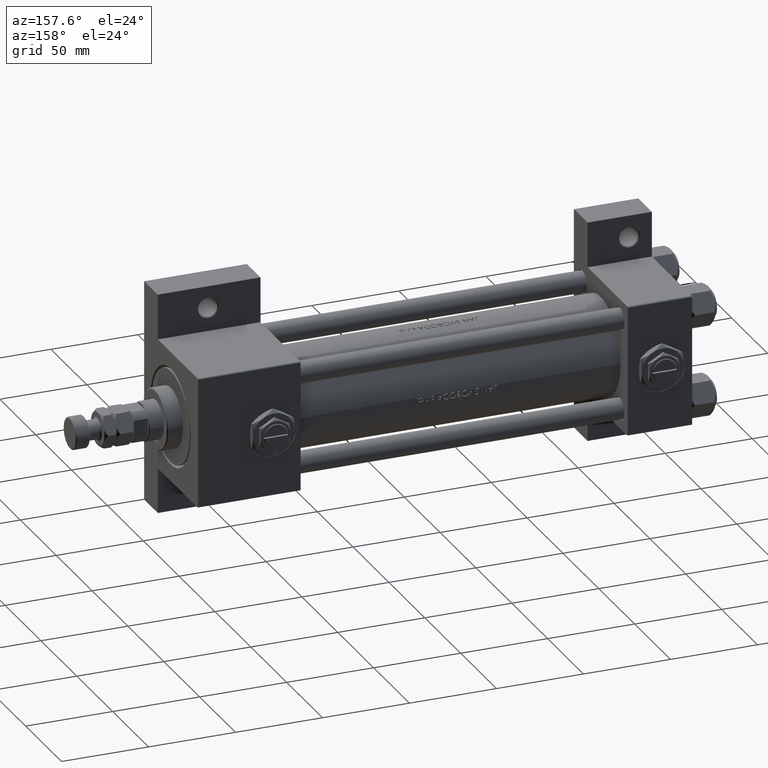
[diagram: clean part render]
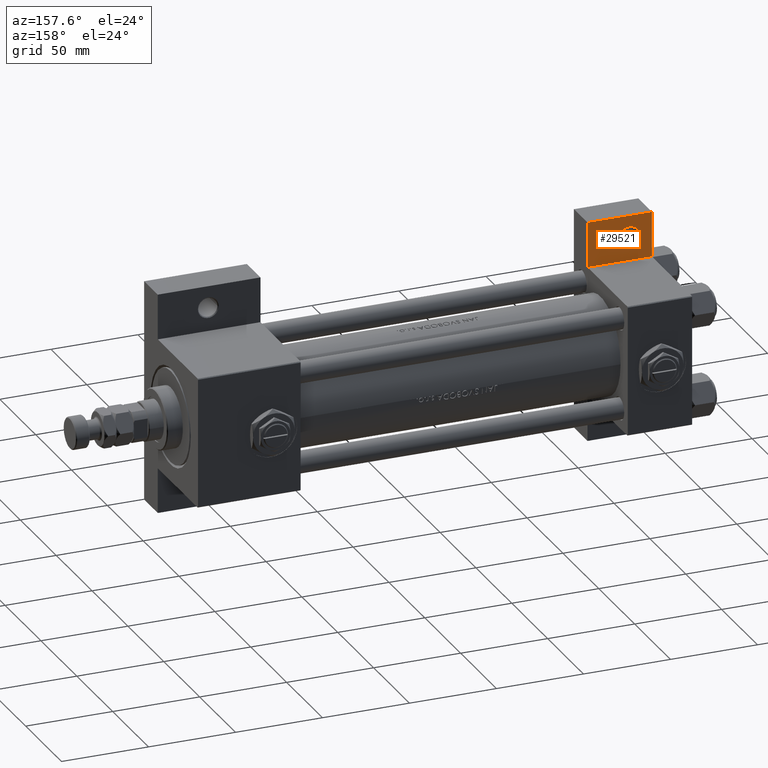
[diagram: same view with one face highlighted and labeled with its STEP entity id]
A machine part, auxiliary view. The second image highlights one B-rep face of the part: STEP entity #29521.
In plain terms, the highlighted planar face has unit normal (0, -1, 0).
Its self-contained STEP definition (entity closure, byte-faithful):
#188 = CARTESIAN_POINT ( 'NONE',  ( -7.145701223179000102E-16, -37.50000000000001421, -18.49999999999999645 ) ) ;
#1687 = ORIENTED_EDGE ( 'NONE', *, *, #18633, .T. ) ;
#1734 = VECTOR ( 'NONE', #19740, 1000.000000000000000 ) ;
#3607 = AXIS2_PLACEMENT_3D ( 'NONE', #4574, #20181, #36071 ) ;
#4158 = ORIENTED_EDGE ( 'NONE', *, *, #40311, .T. ) ;
#4574 = CARTESIAN_POINT ( 'NONE',  ( 12.99999999999999822, -51.00000000000002842, -18.50000000000000000 ) ) ;
#4653 = LINE ( 'NONE', #23599, #1734 ) ;
#5338 = FACE_OUTER_BOUND ( 'NONE', #29093, .T. ) ;
#6529 = VERTEX_POINT ( 'NONE', #21833 ) ;
#7335 = CARTESIAN_POINT ( 'NONE',  ( 37.00000000000000000, -63.49999999999998579, -18.50000000000000355 ) ) ;
#7936 = CARTESIAN_POINT ( 'NONE',  ( -7.145701223179004046E-16, -37.50000000000000711, -18.50000000000000355 ) ) ;
#8640 = DIRECTION ( 'NONE',  ( -1.000000000000000000, 0.000000000000000000, 0.000000000000000000 ) ) ;
#9877 = ORIENTED_EDGE ( 'NONE', *, *, #33243, .T. ) ;
#12215 = AXIS2_PLACEMENT_3D ( 'NONE', #47536, #35489, #12420 ) ;
#12420 = DIRECTION ( 'NONE',  ( -1.000000000000000000, 0.000000000000000000, 0.000000000000000000 ) ) ;
#13226 = VERTEX_POINT ( 'NONE', #40373 ) ;
#14512 = LINE ( 'NONE', #7335, #42526 ) ;
#16682 = DIRECTION ( 'NONE',  ( 4.278042683914906889E-17, -1.000000000000000000, 0.000000000000000000 ) ) ;
#17112 = CIRCLE ( 'NONE', #12215, 5.999499999999966526 ) ;
#17268 = EDGE_LOOP ( 'NONE', ( #9877, #1687 ) ) ;
#17606 = PLANE ( 'NONE',  #26374 ) ;
#18407 = VERTEX_POINT ( 'NONE', #7936 ) ;
#18529 = ORIENTED_EDGE ( 'NONE', *, *, #21001, .T. ) ;
#18633 = EDGE_CURVE ( 'NONE', #43049, #6529, #17112, .T. ) ;
#19740 = DIRECTION ( 'NONE',  ( 1.000000000000000000, 0.000000000000000000, 0.000000000000000000 ) ) ;
#20181 = DIRECTION ( 'NONE',  ( 0.000000000000000000, 0.000000000000000000, -1.000000000000000000 ) ) ;
#20952 = DIRECTION ( 'NONE',  ( 0.000000000000000000, 0.000000000000000000, -1.000000000000000000 ) ) ;
#21001 = EDGE_CURVE ( 'NONE', #35313, #18407, #39371, .T. ) ;
#21833 = CARTESIAN_POINT ( 'NONE',  ( 18.99949999999996564, -51.00000000000002842, -18.50000000000000000 ) ) ;
#22920 = VECTOR ( 'NONE', #8640, 1000.000000000000000 ) ;
#23599 = CARTESIAN_POINT ( 'NONE',  ( 3.977209754999747208E-16, -63.50000000000000000, -18.50000000000000355 ) ) ;
#23722 = ORIENTED_EDGE ( 'NONE', *, *, #48873, .T. ) ;
#24255 = CARTESIAN_POINT ( 'NONE',  ( 3.977209754999747208E-16, -63.50000000000000000, -18.50000000000000355 ) ) ;
#25292 = CARTESIAN_POINT ( 'NONE',  ( 0.000000000000000000, 0.000000000000000000, -18.50000000000000000 ) ) ;
#25690 = CIRCLE ( 'NONE', #3607, 5.999499999999966526 ) ;
#26033 = DIRECTION ( 'NONE',  ( -0.000000000000000000, 1.000000000000000000, 0.000000000000000000 ) ) ;
#26374 = AXIS2_PLACEMENT_3D ( 'NONE', #25292, #20952, #44015 ) ;
#27498 = CARTESIAN_POINT ( 'NONE',  ( 7.000500000000030809, -51.00000000000002842, -18.50000000000000000 ) ) ;
#29093 = EDGE_LOOP ( 'NONE', ( #29583, #18529, #23722, #4158 ) ) ;
#29521 = ADVANCED_FACE ( 'NONE', ( #40428, #5338 ), #17606, .F. ) ;
#29583 = ORIENTED_EDGE ( 'NONE', *, *, #38019, .T. ) ;
#33243 = EDGE_CURVE ( 'NONE', #6529, #43049, #25690, .T. ) ;
#35313 = VERTEX_POINT ( 'NONE', #47135 ) ;
#35478 = VECTOR ( 'NONE', #16682, 1000.000000000000000 ) ;
#35489 = DIRECTION ( 'NONE',  ( 0.000000000000000000, 0.000000000000000000, -1.000000000000000000 ) ) ;
#35667 = VERTEX_POINT ( 'NONE', #24255 ) ;
#36071 = DIRECTION ( 'NONE',  ( -1.000000000000000000, 0.000000000000000000, 0.000000000000000000 ) ) ;
#38019 = EDGE_CURVE ( 'NONE', #13226, #35313, #14512, .T. ) ;
#39371 = LINE ( 'NONE', #188, #22920 ) ;
#40311 = EDGE_CURVE ( 'NONE', #35667, #13226, #4653, .T. ) ;
#40373 = CARTESIAN_POINT ( 'NONE',  ( 37.00000000000000000, -63.50000000000000000, -18.50000000000000355 ) ) ;
#40428 = FACE_BOUND ( 'NONE', #17268, .T. ) ;
#42526 = VECTOR ( 'NONE', #26033, 1000.000000000000000 ) ;
#43049 = VERTEX_POINT ( 'NONE', #27498 ) ;
#43324 = CARTESIAN_POINT ( 'NONE',  ( 3.977209754999744250E-16, -63.49999999999998579, -18.50000000000000355 ) ) ;
#44015 = DIRECTION ( 'NONE',  ( -1.000000000000000000, 0.000000000000000000, -0.000000000000000000 ) ) ;
#47135 = CARTESIAN_POINT ( 'NONE',  ( 37.00000000000000000, -37.50000000000000000, -18.50000000000000355 ) ) ;
#47439 = LINE ( 'NONE', #43324, #35478 ) ;
#47536 = CARTESIAN_POINT ( 'NONE',  ( 12.99999999999999822, -51.00000000000002842, -18.50000000000000000 ) ) ;
#48873 = EDGE_CURVE ( 'NONE', #18407, #35667, #47439, .T. ) ;